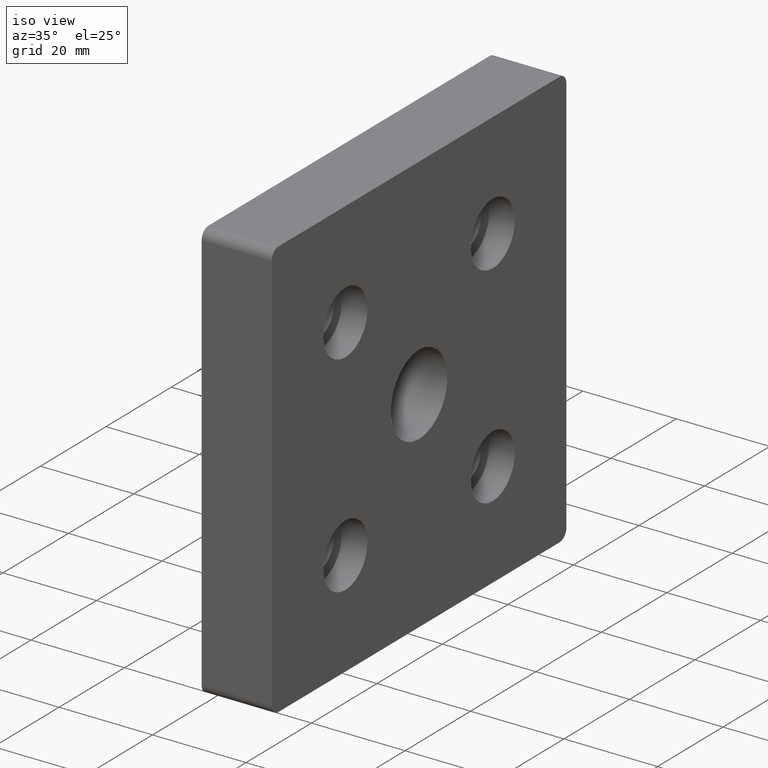
[diagram: clean part render]
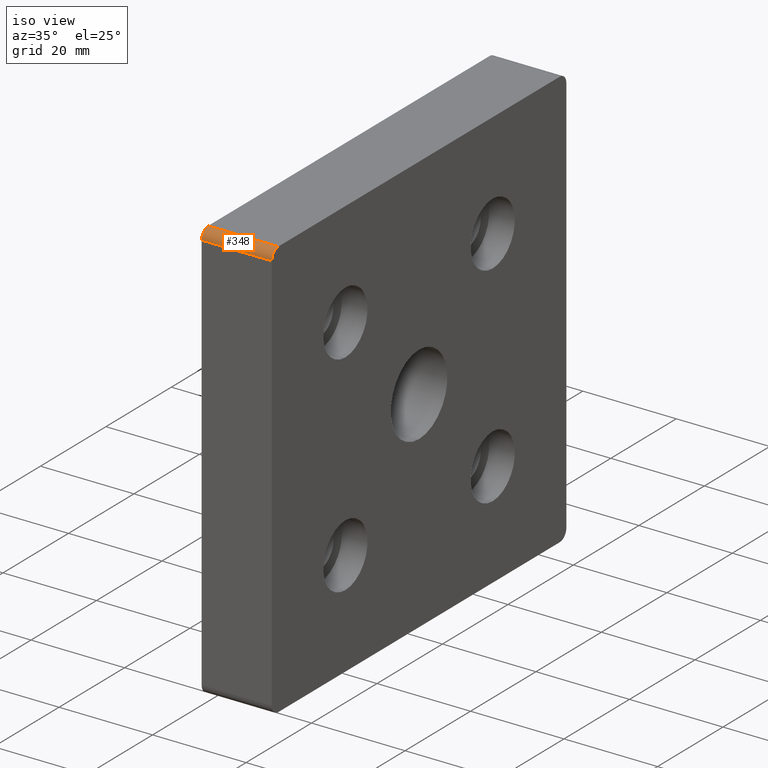
[diagram: same view with one face highlighted and labeled with its STEP entity id]
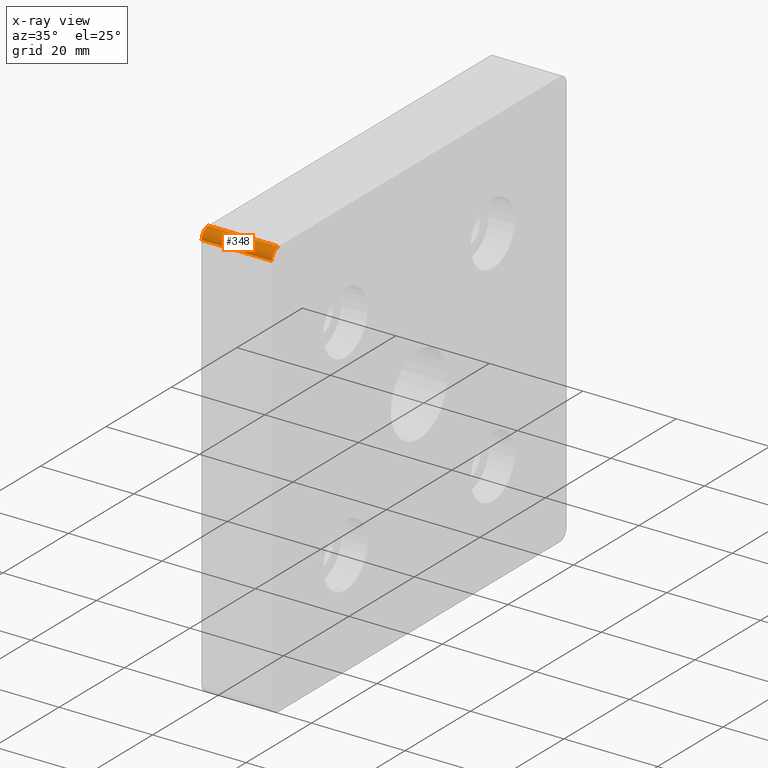
[diagram: x-ray of the same camera — body ghosted, the highlighted face saturated]
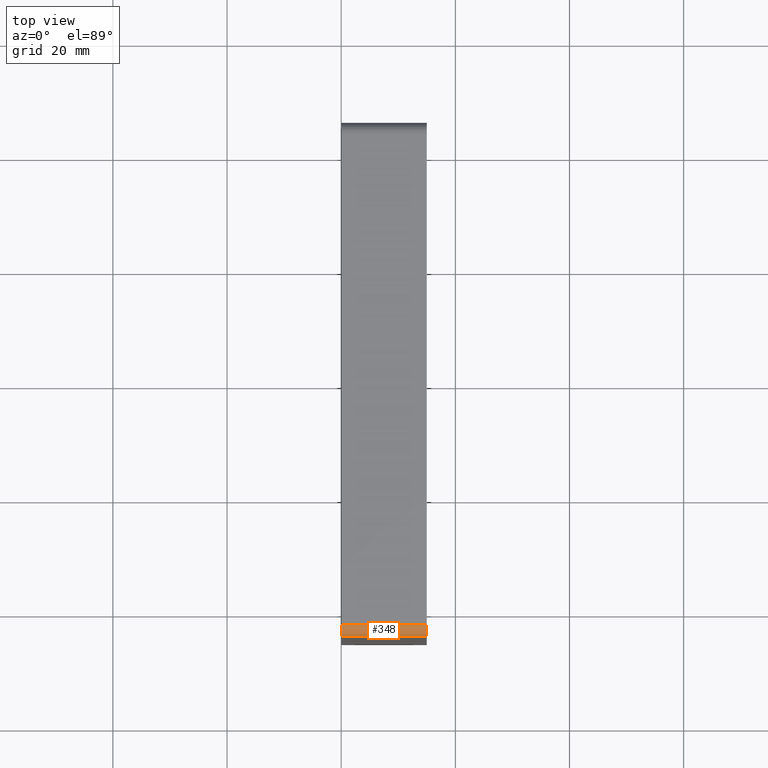
[diagram: same view with one face highlighted and labeled with its STEP entity id]
A machine part, iso view. The second image highlights one B-rep face of the part: STEP entity #348.
The next image is the same camera in x-ray: the body ghosted, the highlighted face saturated — about 0% of this face is hidden behind the body in this view.
A second angle (top view) of the same face is appended — the face is thin or edge-on in the first view.
In plain terms, the highlighted cylindrical surface (edge-blend (fillet) strip) has radius 2 mm, axis along (1, 0, 0).
Its self-contained STEP definition (entity closure, byte-faithful):
#48=FACE_OUTER_BOUND('',#71,.T.);
#71=EDGE_LOOP('',(#251,#252,#253,#254));
#117=LINE('',#544,#133);
#118=LINE('',#547,#134);
#133=VECTOR('',#428,15.);
#134=VECTOR('',#431,15.);
#149=CIRCLE('',#374,2.);
#150=CIRCLE('',#375,2.);
#175=VERTEX_POINT('',#540);
#176=VERTEX_POINT('',#541);
#177=VERTEX_POINT('',#543);
#178=VERTEX_POINT('',#545);
#209=EDGE_CURVE('',#175,#176,#149,.T.);
#210=EDGE_CURVE('',#176,#177,#117,.T.);
#211=EDGE_CURVE('',#177,#178,#150,.T.);
#212=EDGE_CURVE('',#178,#175,#118,.T.);
#251=ORIENTED_EDGE('',*,*,#209,.T.);
#252=ORIENTED_EDGE('',*,*,#210,.T.);
#253=ORIENTED_EDGE('',*,*,#211,.T.);
#254=ORIENTED_EDGE('',*,*,#212,.T.);
#335=CYLINDRICAL_SURFACE('',#373,2.);
#348=ADVANCED_FACE('',(#48),#335,.T.);
#373=AXIS2_PLACEMENT_3D('',#539,#424,#425);
#374=AXIS2_PLACEMENT_3D('',#542,#426,#427);
#375=AXIS2_PLACEMENT_3D('',#546,#429,#430);
#424=DIRECTION('center_axis',(1.,0.,0.));
#425=DIRECTION('ref_axis',(0.,-0.707106781186548,0.707106781186548));
#426=DIRECTION('center_axis',(-1.,0.,0.));
#427=DIRECTION('ref_axis',(0.,-0.707106781186548,0.707106781186548));
#428=DIRECTION('',(-1.,0.,0.));
#429=DIRECTION('center_axis',(1.,0.,0.));
#430=DIRECTION('ref_axis',(0.,-0.707106781186548,0.707106781186548));
#431=DIRECTION('',(1.,0.,0.));
#539=CARTESIAN_POINT('Origin',(0.,-43.,43.));
#540=CARTESIAN_POINT('',(15.,-45.,43.));
#541=CARTESIAN_POINT('',(15.,-43.,45.));
#542=CARTESIAN_POINT('Origin',(15.,-43.,43.));
#543=CARTESIAN_POINT('',(0.,-43.,45.));
#544=CARTESIAN_POINT('',(0.,-43.,45.));
#545=CARTESIAN_POINT('',(0.,-45.,43.));
#546=CARTESIAN_POINT('Origin',(0.,-43.,43.));
#547=CARTESIAN_POINT('',(0.,-45.,43.));